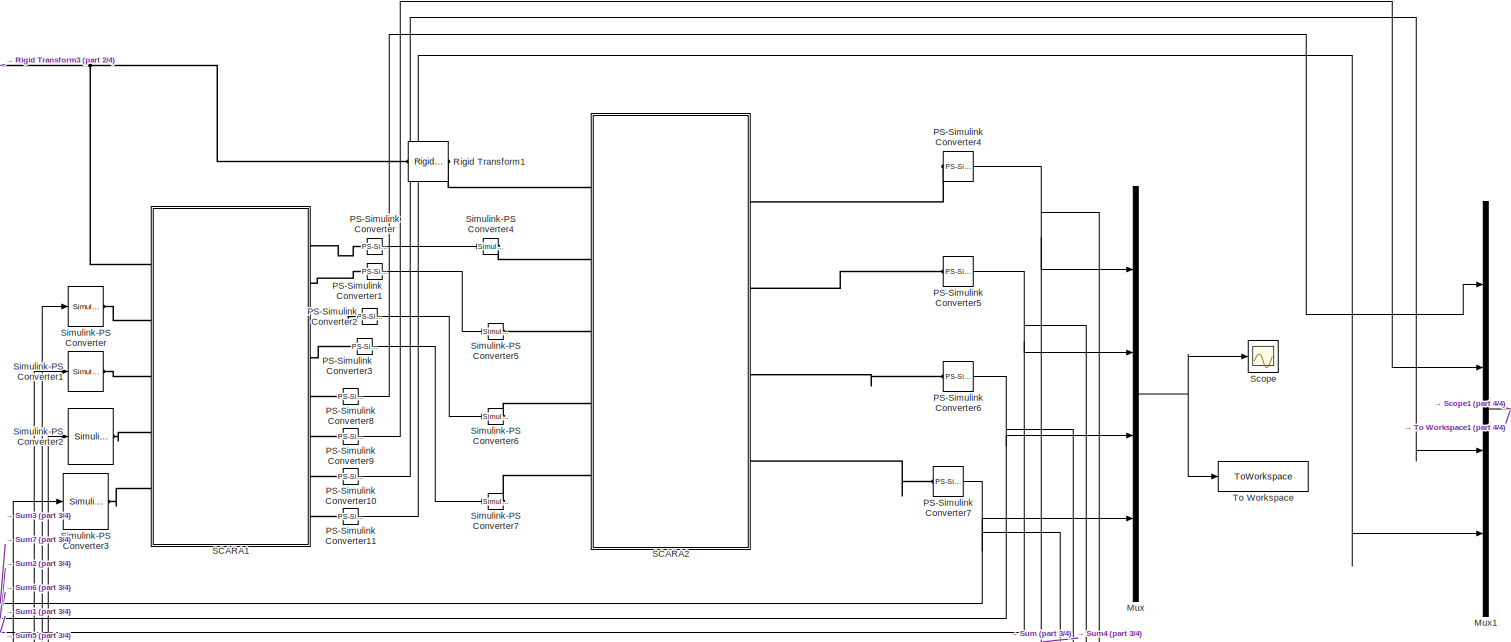
[diagram: root canvas - part 1/4, top center region]
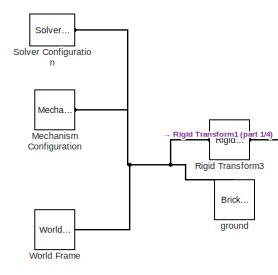
[diagram: root canvas - part 2/4, top left region]
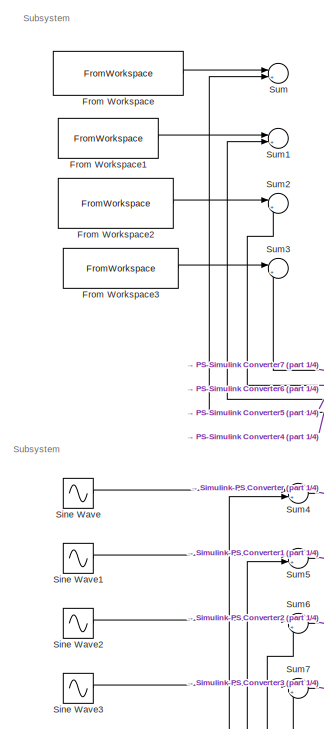
[diagram: root canvas - part 3/4, middle left region]
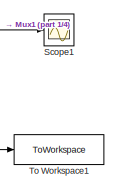
[diagram: root canvas - part 4/4, middle right region]
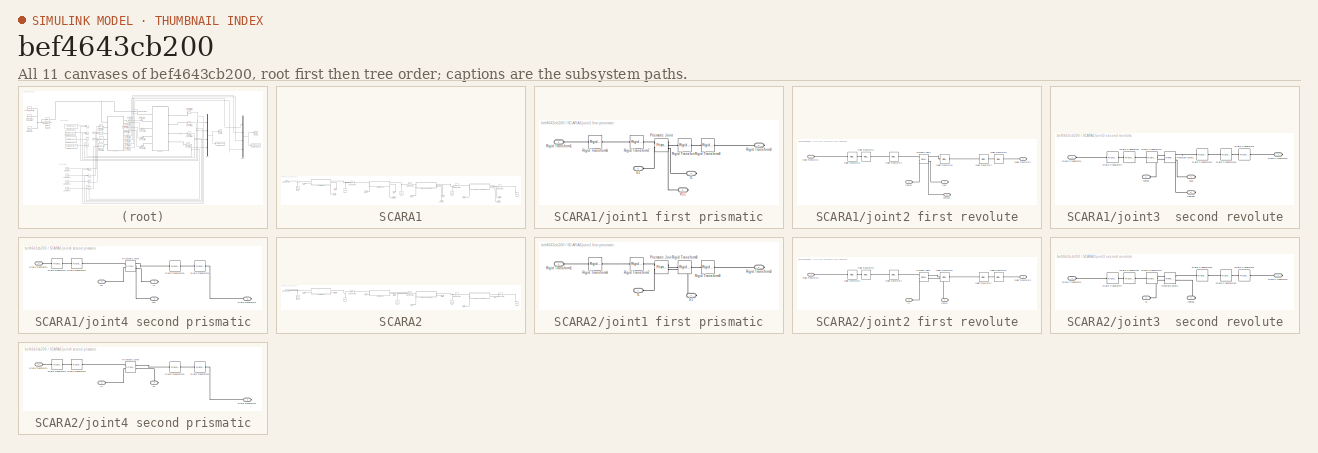
[diagram: thumbnail index - all 11 canvases of the model, root first then tree order]
MODEL slx_bef4643cb200
KIND model
CONFIG AbsTol = auto
CONFIG EnableMultiTasking = off
CONFIG FixedStep = 0.001
CONFIG MaxStep = auto
CONFIG MinStep = auto
CONFIG RelTol = 1e-3
CONFIG SampleTimeConstraint = Unconstrained
CONFIG SolverName = VariableStepAuto
CONFIG StartTime = 0.0
CONFIG StopTime = 50
BLOCK [FromWorkspace] From Workspace
  SampleTime = -1
  VariableName = b1_timeseries
BLOCK [FromWorkspace] From Workspace1
  SampleTime = -1
  VariableName = theta2_timeseries
BLOCK [FromWorkspace] From Workspace2
  SampleTime = -1
  VariableName = theta3_timeseries
BLOCK [FromWorkspace] From Workspace3
  SampleTime = -1
  VariableName = b4_timeseries
BLOCK [Reference] Mechanism Configuration  REF=sm_lib/Utilities/Mechanism
Configuration
  Ports = [0, 0, 0, 0, 0, 0, 1]
  SourceBlock = sm_lib/Utilities/Mechanism\nConfiguration
  SourceProductBaseCode = MS
  SourceType = Mechanism\nConfiguration
BLOCK [Mux] Mux
  DisplayOption = bar
  Ports = [4, 1]
BLOCK [Mux] Mux1
  DisplayOption = bar
  Ports = [4, 1]
BLOCK [Reference] PS-Simulink Converter  REF=nesl_utility/PS-Simulink
Converter
  Ports = [0, 1, 0, 0, 0, 1]
  SourceBlock = nesl_utility/PS-Simulink\nConverter
  SourceProductBaseCode = PW,SS
  SourceType = PS-Simulink\nConverter
BLOCK [Reference] PS-Simulink Converter1  REF=nesl_utility/PS-Simulink
Converter
  Ports = [0, 1, 0, 0, 0, 1]
  SourceBlock = nesl_utility/PS-Simulink\nConverter
  SourceProductBaseCode = PW,SS
  SourceType = PS-Simulink\nConverter
BLOCK [Reference] PS-Simulink Converter10  REF=nesl_utility/PS-Simulink
Converter
  Ports = [0, 1, 0, 0, 0, 1]
  SourceBlock = nesl_utility/PS-Simulink\nConverter
  SourceProductBaseCode = PW,SS
  SourceType = PS-Simulink\nConverter
BLOCK [Reference] PS-Simulink Converter11  REF=nesl_utility/PS-Simulink
Converter
  Ports = [0, 1, 0, 0, 0, 1]
  SourceBlock = nesl_utility/PS-Simulink\nConverter
  SourceProductBaseCode = PW,SS
  SourceType = PS-Simulink\nConverter
BLOCK [Reference] PS-Simulink Converter2  REF=nesl_utility/PS-Simulink
Converter
  Ports = [0, 1, 0, 0, 0, 1]
  SourceBlock = nesl_utility/PS-Simulink\nConverter
  SourceProductBaseCode = PW,SS
  SourceType = PS-Simulink\nConverter
BLOCK [Reference] PS-Simulink Converter3  REF=nesl_utility/PS-Simulink
Converter
  Ports = [0, 1, 0, 0, 0, 1]
  SourceBlock = nesl_utility/PS-Simulink\nConverter
  SourceProductBaseCode = PW,SS
  SourceType = PS-Simulink\nConverter
BLOCK [Reference] PS-Simulink Converter4  REF=nesl_utility/PS-Simulink
Converter
  Ports = [0, 1, 0, 0, 0, 1]
  SourceBlock = nesl_utility/PS-Simulink\nConverter
  SourceProductBaseCode = PW,SS
  SourceType = PS-Simulink\nConverter
BLOCK [Reference] PS-Simulink Converter5  REF=nesl_utility/PS-Simulink
Converter
  Ports = [0, 1, 0, 0, 0, 1]
  SourceBlock = nesl_utility/PS-Simulink\nConverter
  SourceProductBaseCode = PW,SS
  SourceType = PS-Simulink\nConverter
BLOCK [Reference] PS-Simulink Converter6  REF=nesl_utility/PS-Simulink
Converter
  Ports = [0, 1, 0, 0, 0, 1]
  SourceBlock = nesl_utility/PS-Simulink\nConverter
  SourceProductBaseCode = PW,SS
  SourceType = PS-Simulink\nConverter
BLOCK [Reference] PS-Simulink Converter7  REF=nesl_utility/PS-Simulink
Converter
  Ports = [0, 1, 0, 0, 0, 1]
  SourceBlock = nesl_utility/PS-Simulink\nConverter
  SourceProductBaseCode = PW,SS
  SourceType = PS-Simulink\nConverter
BLOCK [Reference] PS-Simulink Converter8  REF=nesl_utility/PS-Simulink
Converter
  Ports = [0, 1, 0, 0, 0, 1]
  SourceBlock = nesl_utility/PS-Simulink\nConverter
  SourceProductBaseCode = PW,SS
  SourceType = PS-Simulink\nConverter
BLOCK [Reference] PS-Simulink Converter9  REF=nesl_utility/PS-Simulink
Converter
  Ports = [0, 1, 0, 0, 0, 1]
  SourceBlock = nesl_utility/PS-Simulink\nConverter
  SourceProductBaseCode = PW,SS
  SourceType = PS-Simulink\nConverter
BLOCK [Reference] Rigid Transform1  REF=sm_lib/Frames and
Transforms/Rigid
Transform
  Ports = [0, 0, 0, 0, 0, 1, 1]
  SourceBlock = sm_lib/Frames and\nTransforms/Rigid\nTransform
  SourceProductBaseCode = MS
  SourceType = Rigid\nTransform
BLOCK [Reference] Rigid Transform3  REF=sm_lib/Frames and
Transforms/Rigid
Transform
  Ports = [0, 0, 0, 0, 0, 1, 1]
  SourceBlock = sm_lib/Frames and\nTransforms/Rigid\nTransform
  SourceProductBaseCode = MS
  SourceType = Rigid\nTransform
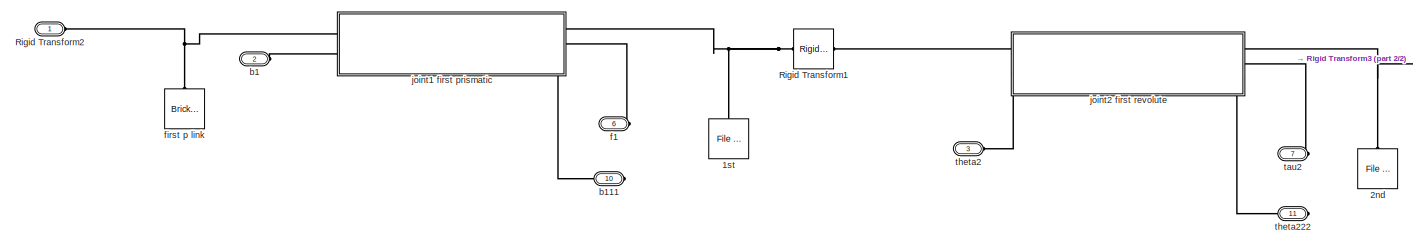
[diagram: SCARA1 - part 1/2, left side, full height]
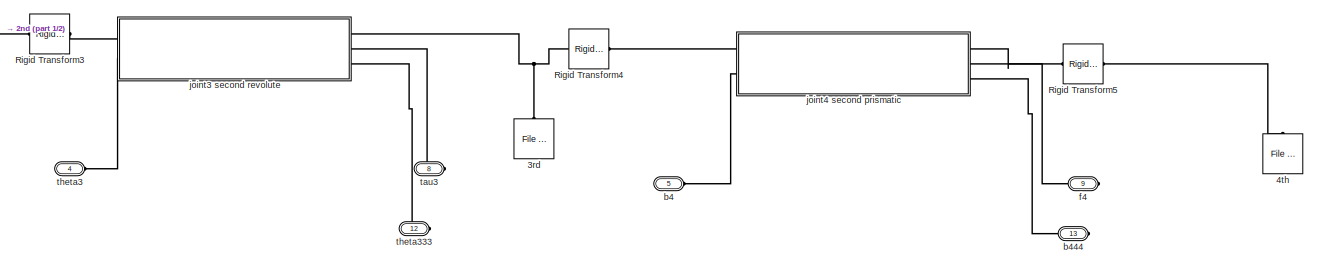
[diagram: SCARA1 - part 2/2, right side, full height]
BLOCK [SubSystem] SCARA1
  Ports = [0, 0, 0, 0, 0, 5, 8]
  RequestExecContextInheritance = off
BLOCK [Reference] SCARA1/1st  REF=sm_lib/Body Elements/File Solid
  NameLocation = right
  Ports = [0, 0, 0, 0, 0, 0, 1]
  SourceBlock = sm_lib/Body Elements/File Solid
  SourceProductBaseCode = MS
  SourceType = File Solid
BLOCK [Reference] SCARA1/2nd  REF=sm_lib/Body Elements/File Solid
  NameLocation = right
  Ports = [0, 0, 0, 0, 0, 0, 1]
  SourceBlock = sm_lib/Body Elements/File Solid
  SourceProductBaseCode = MS
  SourceType = File Solid
BLOCK [Reference] SCARA1/3rd  REF=sm_lib/Body Elements/File Solid
  NameLocation = right
  Ports = [0, 0, 0, 0, 0, 0, 1]
  SourceBlock = sm_lib/Body Elements/File Solid
  SourceProductBaseCode = MS
  SourceType = File Solid
BLOCK [Reference] SCARA1/4th  REF=sm_lib/Body Elements/File Solid
  NameLocation = right
  Ports = [0, 0, 0, 0, 0, 0, 1]
  SourceBlock = sm_lib/Body Elements/File Solid
  SourceProductBaseCode = MS
  SourceType = File Solid
BLOCK [Reference] SCARA1/Rigid Transform1  REF=sm_lib/Frames and
Transforms/Rigid
Transform
  Ports = [0, 0, 0, 0, 0, 1, 1]
  SourceBlock = sm_lib/Frames and\nTransforms/Rigid\nTransform
  SourceProductBaseCode = MS
  SourceType = Rigid\nTransform
BLOCK [PMIOPort] SCARA1/Rigid Transform2
  Side = Left
BLOCK [Reference] SCARA1/Rigid Transform3  REF=sm_lib/Frames and
Transforms/Rigid
Transform
  Ports = [0, 0, 0, 0, 0, 1, 1]
  SourceBlock = sm_lib/Frames and\nTransforms/Rigid\nTransform
  SourceProductBaseCode = MS
  SourceType = Rigid\nTransform
BLOCK [Reference] SCARA1/Rigid Transform4  REF=sm_lib/Frames and
Transforms/Rigid
Transform
  Ports = [0, 0, 0, 0, 0, 1, 1]
  SourceBlock = sm_lib/Frames and\nTransforms/Rigid\nTransform
  SourceProductBaseCode = MS
  SourceType = Rigid\nTransform
BLOCK [Reference] SCARA1/Rigid Transform5  REF=sm_lib/Frames and
Transforms/Rigid
Transform
  Ports = [0, 0, 0, 0, 0, 1, 1]
  SourceBlock = sm_lib/Frames and\nTransforms/Rigid\nTransform
  SourceProductBaseCode = MS
  SourceType = Rigid\nTransform
BLOCK [PMIOPort] SCARA1/b1
  Port = 2
  Side = Left
BLOCK [PMIOPort] SCARA1/b111
  NameLocation = top
  Port = 10
  Side = Right
BLOCK [PMIOPort] SCARA1/b4
  Port = 5
  Side = Left
BLOCK [PMIOPort] SCARA1/b444
  NameLocation = top
  Port = 13
  Side = Right
BLOCK [PMIOPort] SCARA1/f1
  NameLocation = top
  Port = 6
  Side = Right
BLOCK [PMIOPort] SCARA1/f4
  NameLocation = top
  Port = 9
  Side = Right
BLOCK [Reference] SCARA1/first p link  REF=sm_lib/Body Elements/Brick Solid
  NameLocation = right
  Ports = [0, 0, 0, 0, 0, 0, 1]
  SourceBlock = sm_lib/Body Elements/Brick Solid
  SourceProductBaseCode = MS
  SourceType = Brick Solid
BLOCK [SubSystem] SCARA1/joint1 first prismatic
  Ports = [0, 0, 0, 0, 0, 2, 3]
  RequestExecContextInheritance = off
BLOCK [Reference] SCARA1/joint1 first prismatic/Prismatic Joint  REF=sm_lib/Joints/Prismatic
Joint
  Ports = [0, 0, 0, 0, 0, 2, 3]
  SourceBlock = sm_lib/Joints/Prismatic\nJoint
  SourceProductBaseCode = MS
  SourceType = Prismatic\nJoint
BLOCK [PMIOPort] SCARA1/joint1 first prismatic/Rigid Transform1
  Side = Left
BLOCK [PMIOPort] SCARA1/joint1 first prismatic/Rigid Transform2
  Port = 2
  Side = Right
BLOCK [Reference] SCARA1/joint1 first prismatic/Rigid Transform6  REF=sm_lib/Frames and
Transforms/Rigid
Transform
  Ports = [0, 0, 0, 0, 0, 1, 1]
  SourceBlock = sm_lib/Frames and\nTransforms/Rigid\nTransform
  SourceProductBaseCode = MS
  SourceType = Rigid\nTransform
BLOCK [Reference] SCARA1/joint1 first prismatic/Rigid Transform7  REF=sm_lib/Frames and
Transforms/Rigid
Transform
  Ports = [0, 0, 0, 0, 0, 1, 1]
  SourceBlock = sm_lib/Frames and\nTransforms/Rigid\nTransform
  SourceProductBaseCode = MS
  SourceType = Rigid\nTransform
BLOCK [Reference] SCARA1/joint1 first prismatic/Rigid Transform8  REF=sm_lib/Frames and
Transforms/Rigid
Transform
  Ports = [0, 0, 0, 0, 0, 1, 1]
  SourceBlock = sm_lib/Frames and\nTransforms/Rigid\nTransform
  SourceProductBaseCode = MS
  SourceType = Rigid\nTransform
BLOCK [Reference] SCARA1/joint1 first prismatic/Rigid Transform9  REF=sm_lib/Frames and
Transforms/Rigid
Transform
  Ports = [0, 0, 0, 0, 0, 1, 1]
  SourceBlock = sm_lib/Frames and\nTransforms/Rigid\nTransform
  SourceProductBaseCode = MS
  SourceType = Rigid\nTransform
BLOCK [PMIOPort] SCARA1/joint1 first prismatic/b1
  Port = 3
  Side = Left
BLOCK [PMIOPort] SCARA1/joint1 first prismatic/b11
  NameLocation = top
  Port = 5
  Side = Right
BLOCK [PMIOPort] SCARA1/joint1 first prismatic/f1
  NameLocation = top
  Port = 4
  Side = Right
BLOCK [SubSystem] SCARA1/joint2 first revolute
  Ports = [0, 0, 0, 0, 0, 2, 3]
  RequestExecContextInheritance = off
BLOCK [Reference] SCARA1/joint2 first revolute/Revolute Joint1  REF=sm_lib/Joints/Revolute Joint
  Ports = [0, 0, 0, 0, 0, 2, 3]
  SourceBlock = sm_lib/Joints/Revolute Joint
  SourceProductBaseCode = MS
  SourceType = Revolute Joint
BLOCK [PMIOPort] SCARA1/joint2 first revolute/Rigid Transform1
  Side = Left
BLOCK [Reference] SCARA1/joint2 first revolute/Rigid Transform2  REF=sm_lib/Frames and
Transforms/Rigid
Transform
  Ports = [0, 0, 0, 0, 0, 1, 1]
  SourceBlock = sm_lib/Frames and\nTransforms/Rigid\nTransform
  SourceProductBaseCode = MS
  SourceType = Rigid\nTransform
BLOCK [PMIOPort] SCARA1/joint2 first revolute/Rigid Transform3
  Port = 2
  Side = Right
BLOCK [Reference] SCARA1/joint2 first revolute/Rigid Transform4  REF=sm_lib/Frames and
Transforms/Rigid
Transform
  Ports = [0, 0, 0, 0, 0, 1, 1]
  SourceBlock = sm_lib/Frames and\nTransforms/Rigid\nTransform
  SourceProductBaseCode = MS
  SourceType = Rigid\nTransform
BLOCK [Reference] SCARA1/joint2 first revolute/Rigid Transform5  REF=sm_lib/Frames and
Transforms/Rigid
Transform
  Ports = [0, 0, 0, 0, 0, 1, 1]
  SourceBlock = sm_lib/Frames and\nTransforms/Rigid\nTransform
  SourceProductBaseCode = MS
  SourceType = Rigid\nTransform
BLOCK [Reference] SCARA1/joint2 first revolute/Rigid Transform6  REF=sm_lib/Frames and
Transforms/Rigid
Transform
  Ports = [0, 0, 0, 0, 0, 1, 1]
  SourceBlock = sm_lib/Frames and\nTransforms/Rigid\nTransform
  SourceProductBaseCode = MS
  SourceType = Rigid\nTransform
BLOCK [Reference] SCARA1/joint2 first revolute/Rigid Transform7  REF=sm_lib/Frames and
Transforms/Rigid
Transform
  Ports = [0, 0, 0, 0, 0, 1, 1]
  SourceBlock = sm_lib/Frames and\nTransforms/Rigid\nTransform
  SourceProductBaseCode = MS
  SourceType = Rigid\nTransform
BLOCK [Reference] SCARA1/joint2 first revolute/Rigid Transform8  REF=sm_lib/Frames and
Transforms/Rigid
Transform
  Ports = [0, 0, 0, 0, 0, 1, 1]
  SourceBlock = sm_lib/Frames and\nTransforms/Rigid\nTransform
  SourceProductBaseCode = MS
  SourceType = Rigid\nTransform
BLOCK [PMIOPort] SCARA1/joint2 first revolute/tau2
  NameLocation = top
  Port = 4
  Side = Right
BLOCK [PMIOPort] SCARA1/joint2 first revolute/tehta22
  NameLocation = top
  Port = 5
  Side = Right
BLOCK [PMIOPort] SCARA1/joint2 first revolute/theta2
  Port = 3
  Side = Left
BLOCK [SubSystem] SCARA1/joint3  second revolute
  Ports = [0, 0, 0, 0, 0, 2, 3]
  RequestExecContextInheritance = off
BLOCK [Reference] SCARA1/joint3  second revolute/Revolute Joint3  REF=sm_lib/Joints/Revolute Joint
  Ports = [0, 0, 0, 0, 0, 2, 3]
  SourceBlock = sm_lib/Joints/Revolute Joint
  SourceProductBaseCode = MS
  SourceType = Revolute Joint
BLOCK [PMIOPort] SCARA1/joint3  second revolute/Rigid Transform1
  Side = Left
BLOCK [Reference] SCARA1/joint3  second revolute/Rigid Transform10  REF=sm_lib/Frames and
Transforms/Rigid
Transform
  Ports = [0, 0, 0, 0, 0, 1, 1]
  SourceBlock = sm_lib/Frames and\nTransforms/Rigid\nTransform
  SourceProductBaseCode = MS
  SourceType = Rigid\nTransform
BLOCK [Reference] SCARA1/joint3  second revolute/Rigid Transform11  REF=sm_lib/Frames and
Transforms/Rigid
Transform
  Ports = [0, 0, 0, 0, 0, 1, 1]
  SourceBlock = sm_lib/Frames and\nTransforms/Rigid\nTransform
  SourceProductBaseCode = MS
  SourceType = Rigid\nTransform
BLOCK [Reference] SCARA1/joint3  second revolute/Rigid Transform12  REF=sm_lib/Frames and
Transforms/Rigid
Transform
  Ports = [0, 0, 0, 0, 0, 1, 1]
  SourceBlock = sm_lib/Frames and\nTransforms/Rigid\nTransform
  SourceProductBaseCode = MS
  SourceType = Rigid\nTransform
BLOCK [PMIOPort] SCARA1/joint3  second revolute/Rigid Transform2
  Port = 2
  Side = Right
BLOCK [Reference] SCARA1/joint3  second revolute/Rigid Transform7  REF=sm_lib/Frames and
Transforms/Rigid
Transform
  Ports = [0, 0, 0, 0, 0, 1, 1]
  SourceBlock = sm_lib/Frames and\nTransforms/Rigid\nTransform
  SourceProductBaseCode = MS
  SourceType = Rigid\nTransform
BLOCK [Reference] SCARA1/joint3  second revolute/Rigid Transform8  REF=sm_lib/Frames and
Transforms/Rigid
Transform
  Ports = [0, 0, 0, 0, 0, 1, 1]
  SourceBlock = sm_lib/Frames and\nTransforms/Rigid\nTransform
  SourceProductBaseCode = MS
  SourceType = Rigid\nTransform
BLOCK [Reference] SCARA1/joint3  second revolute/Rigid Transform9  REF=sm_lib/Frames and
Transforms/Rigid
Transform
  Ports = [0, 0, 0, 0, 0, 1, 1]
  SourceBlock = sm_lib/Frames and\nTransforms/Rigid\nTransform
  SourceProductBaseCode = MS
  SourceType = Rigid\nTransform
BLOCK [PMIOPort] SCARA1/joint3  second revolute/tau3
  NameLocation = top
  Port = 4
  Side = Right
BLOCK [PMIOPort] SCARA1/joint3  second revolute/theta3
  Port = 3
  Side = Left
BLOCK [PMIOPort] SCARA1/joint3  second revolute/theta33
  NameLocation = top
  Port = 5
  Side = Right
BLOCK [SubSystem] SCARA1/joint4 second prismatic
  Ports = [0, 0, 0, 0, 0, 2, 3]
  RequestExecContextInheritance = off
BLOCK [Reference] SCARA1/joint4 second prismatic/Prismatic Joint  REF=sm_lib/Joints/Prismatic
Joint
  Ports = [0, 0, 0, 0, 0, 2, 3]
  SourceBlock = sm_lib/Joints/Prismatic\nJoint
  SourceProductBaseCode = MS
  SourceType = Prismatic\nJoint
BLOCK [PMIOPort] SCARA1/joint4 second prismatic/Rigid Transform1
  Side = Left
BLOCK [Reference] SCARA1/joint4 second prismatic/Rigid Transform10  REF=sm_lib/Frames and
Transforms/Rigid
Transform
  Ports = [0, 0, 0, 0, 0, 1, 1]
  SourceBlock = sm_lib/Frames and\nTransforms/Rigid\nTransform
  SourceProductBaseCode = MS
  SourceType = Rigid\nTransform
BLOCK [PMIOPort] SCARA1/joint4 second prismatic/Rigid Transform2
  Port = 3
  Side = Right
BLOCK [Reference] SCARA1/joint4 second prismatic/Rigid Transform7  REF=sm_lib/Frames and
Transforms/Rigid
Transform
  Ports = [0, 0, 0, 0, 0, 1, 1]
  SourceBlock = sm_lib/Frames and\nTransforms/Rigid\nTransform
  SourceProductBaseCode = MS
  SourceType = Rigid\nTransform
BLOCK [Reference] SCARA1/joint4 second prismatic/Rigid Transform8  REF=sm_lib/Frames and
Transforms/Rigid
Transform
  Ports = [0, 0, 0, 0, 0, 1, 1]
  SourceBlock = sm_lib/Frames and\nTransforms/Rigid\nTransform
  SourceProductBaseCode = MS
  SourceType = Rigid\nTransform
BLOCK [Reference] SCARA1/joint4 second prismatic/Rigid Transform9  REF=sm_lib/Frames and
Transforms/Rigid
Transform
  Ports = [0, 0, 0, 0, 0, 1, 1]
  SourceBlock = sm_lib/Frames and\nTransforms/Rigid\nTransform
  SourceProductBaseCode = MS
  SourceType = Rigid\nTransform
BLOCK [PMIOPort] SCARA1/joint4 second prismatic/b4
  Port = 2
  Side = Left
BLOCK [PMIOPort] SCARA1/joint4 second prismatic/b44
  NameLocation = top
  Port = 5
  Side = Right
BLOCK [PMIOPort] SCARA1/joint4 second prismatic/f4
  NameLocation = top
  Port = 4
  Side = Right
BLOCK [PMIOPort] SCARA1/tau2
  NameLocation = top
  Port = 7
  Side = Right
BLOCK [PMIOPort] SCARA1/tau3
  NameLocation = top
  Port = 8
  Side = Right
BLOCK [PMIOPort] SCARA1/theta2
  Port = 3
  Side = Left
BLOCK [PMIOPort] SCARA1/theta222
  NameLocation = top
  Port = 11
  Side = Right
BLOCK [PMIOPort] SCARA1/theta3
  Port = 4
  Side = Left
BLOCK [PMIOPort] SCARA1/theta333
  NameLocation = top
  Port = 12
  Side = Right
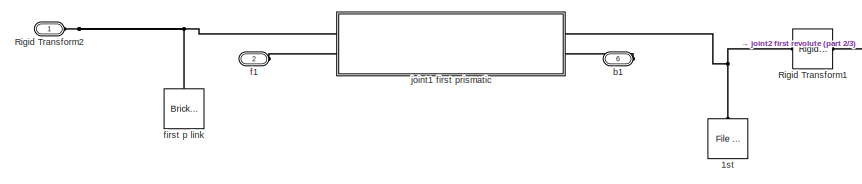
[diagram: SCARA2 - part 1/3, middle left region]
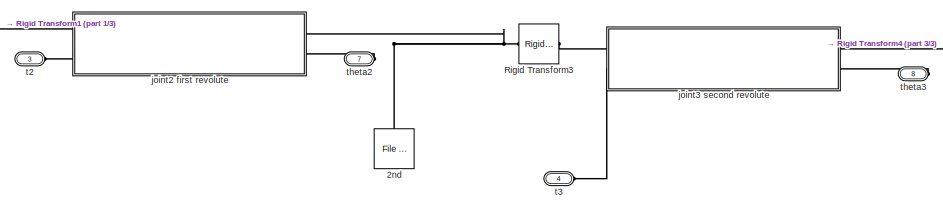
[diagram: SCARA2 - part 2/3, center side, full height]
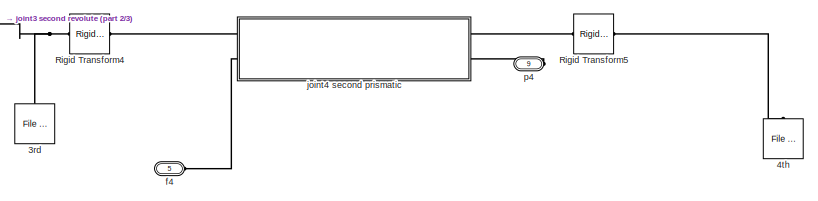
[diagram: SCARA2 - part 3/3, middle right region]
BLOCK [SubSystem] SCARA2
  Ports = [0, 0, 0, 0, 0, 5, 4]
  RequestExecContextInheritance = off
BLOCK [Reference] SCARA2/1st  REF=sm_lib/Body Elements/File Solid
  NameLocation = right
  Ports = [0, 0, 0, 0, 0, 0, 1]
  SourceBlock = sm_lib/Body Elements/File Solid
  SourceProductBaseCode = MS
  SourceType = File Solid
BLOCK [Reference] SCARA2/2nd  REF=sm_lib/Body Elements/File Solid
  NameLocation = right
  Ports = [0, 0, 0, 0, 0, 0, 1]
  SourceBlock = sm_lib/Body Elements/File Solid
  SourceProductBaseCode = MS
  SourceType = File Solid
BLOCK [Reference] SCARA2/3rd  REF=sm_lib/Body Elements/File Solid
  NameLocation = right
  Ports = [0, 0, 0, 0, 0, 0, 1]
  SourceBlock = sm_lib/Body Elements/File Solid
  SourceProductBaseCode = MS
  SourceType = File Solid
BLOCK [Reference] SCARA2/4th  REF=sm_lib/Body Elements/File Solid
  NameLocation = right
  Ports = [0, 0, 0, 0, 0, 0, 1]
  SourceBlock = sm_lib/Body Elements/File Solid
  SourceProductBaseCode = MS
  SourceType = File Solid
BLOCK [Reference] SCARA2/Rigid Transform1  REF=sm_lib/Frames and
Transforms/Rigid
Transform
  Ports = [0, 0, 0, 0, 0, 1, 1]
  SourceBlock = sm_lib/Frames and\nTransforms/Rigid\nTransform
  SourceProductBaseCode = MS
  SourceType = Rigid\nTransform
BLOCK [PMIOPort] SCARA2/Rigid Transform2
  Side = Left
BLOCK [Reference] SCARA2/Rigid Transform3  REF=sm_lib/Frames and
Transforms/Rigid
Transform
  Ports = [0, 0, 0, 0, 0, 1, 1]
  SourceBlock = sm_lib/Frames and\nTransforms/Rigid\nTransform
  SourceProductBaseCode = MS
  SourceType = Rigid\nTransform
BLOCK [Reference] SCARA2/Rigid Transform4  REF=sm_lib/Frames and
Transforms/Rigid
Transform
  Ports = [0, 0, 0, 0, 0, 1, 1]
  SourceBlock = sm_lib/Frames and\nTransforms/Rigid\nTransform
  SourceProductBaseCode = MS
  SourceType = Rigid\nTransform
BLOCK [Reference] SCARA2/Rigid Transform5  REF=sm_lib/Frames and
Transforms/Rigid
Transform
  Ports = [0, 0, 0, 0, 0, 1, 1]
  SourceBlock = sm_lib/Frames and\nTransforms/Rigid\nTransform
  SourceProductBaseCode = MS
  SourceType = Rigid\nTransform
BLOCK [PMIOPort] SCARA2/b1
  NameLocation = top
  Port = 6
  Side = Right
BLOCK [PMIOPort] SCARA2/f1
  Port = 2
  Side = Left
BLOCK [PMIOPort] SCARA2/f4
  Port = 5
  Side = Left
BLOCK [Reference] SCARA2/first p link  REF=sm_lib/Body Elements/Brick Solid
  NameLocation = right
  Ports = [0, 0, 0, 0, 0, 0, 1]
  SourceBlock = sm_lib/Body Elements/Brick Solid
  SourceProductBaseCode = MS
  SourceType = Brick Solid
BLOCK [SubSystem] SCARA2/joint1 first prismatic
  Ports = [0, 0, 0, 0, 0, 2, 2]
  RequestExecContextInheritance = off
BLOCK [Reference] SCARA2/joint1 first prismatic/Prismatic Joint  REF=sm_lib/Joints/Prismatic
Joint
  Ports = [0, 0, 0, 0, 0, 2, 2]
  SourceBlock = sm_lib/Joints/Prismatic\nJoint
  SourceProductBaseCode = MS
  SourceType = Prismatic\nJoint
BLOCK [PMIOPort] SCARA2/joint1 first prismatic/Rigid Transform1
  Side = Left
BLOCK [PMIOPort] SCARA2/joint1 first prismatic/Rigid Transform2
  Port = 2
  Side = Right
BLOCK [Reference] SCARA2/joint1 first prismatic/Rigid Transform6  REF=sm_lib/Frames and
Transforms/Rigid
Transform
  Ports = [0, 0, 0, 0, 0, 1, 1]
  SourceBlock = sm_lib/Frames and\nTransforms/Rigid\nTransform
  SourceProductBaseCode = MS
  SourceType = Rigid\nTransform
BLOCK [Reference] SCARA2/joint1 first prismatic/Rigid Transform7  REF=sm_lib/Frames and
Transforms/Rigid
Transform
  Ports = [0, 0, 0, 0, 0, 1, 1]
  SourceBlock = sm_lib/Frames and\nTransforms/Rigid\nTransform
  SourceProductBaseCode = MS
  SourceType = Rigid\nTransform
BLOCK [Reference] SCARA2/joint1 first prismatic/Rigid Transform8  REF=sm_lib/Frames and
Transforms/Rigid
Transform
  Ports = [0, 0, 0, 0, 0, 1, 1]
  SourceBlock = sm_lib/Frames and\nTransforms/Rigid\nTransform
  SourceProductBaseCode = MS
  SourceType = Rigid\nTransform
BLOCK [Reference] SCARA2/joint1 first prismatic/Rigid Transform9  REF=sm_lib/Frames and
Transforms/Rigid
Transform
  Ports = [0, 0, 0, 0, 0, 1, 1]
  SourceBlock = sm_lib/Frames and\nTransforms/Rigid\nTransform
  SourceProductBaseCode = MS
  SourceType = Rigid\nTransform
BLOCK [PMIOPort] SCARA2/joint1 first prismatic/b1
  NameLocation = top
  Port = 4
  Side = Right
BLOCK [PMIOPort] SCARA2/joint1 first prismatic/f1
  Port = 3
  Side = Left
BLOCK [SubSystem] SCARA2/joint2 first revolute
  Ports = [0, 0, 0, 0, 0, 2, 2]
  RequestExecContextInheritance = off
BLOCK [Reference] SCARA2/joint2 first revolute/Revolute Joint1  REF=sm_lib/Joints/Revolute Joint
  Ports = [0, 0, 0, 0, 0, 2, 2]
  SourceBlock = sm_lib/Joints/Revolute Joint
  SourceProductBaseCode = MS
  SourceType = Revolute Joint
BLOCK [PMIOPort] SCARA2/joint2 first revolute/Rigid Transform1
  Side = Left
BLOCK [Reference] SCARA2/joint2 first revolute/Rigid Transform2  REF=sm_lib/Frames and
Transforms/Rigid
Transform
  Ports = [0, 0, 0, 0, 0, 1, 1]
  SourceBlock = sm_lib/Frames and\nTransforms/Rigid\nTransform
  SourceProductBaseCode = MS
  SourceType = Rigid\nTransform
BLOCK [PMIOPort] SCARA2/joint2 first revolute/Rigid Transform3
  Port = 2
  Side = Right
BLOCK [Reference] SCARA2/joint2 first revolute/Rigid Transform4  REF=sm_lib/Frames and
Transforms/Rigid
Transform
  Ports = [0, 0, 0, 0, 0, 1, 1]
  SourceBlock = sm_lib/Frames and\nTransforms/Rigid\nTransform
  SourceProductBaseCode = MS
  SourceType = Rigid\nTransform
BLOCK [Reference] SCARA2/joint2 first revolute/Rigid Transform5  REF=sm_lib/Frames and
Transforms/Rigid
Transform
  Ports = [0, 0, 0, 0, 0, 1, 1]
  SourceBlock = sm_lib/Frames and\nTransforms/Rigid\nTransform
  SourceProductBaseCode = MS
  SourceType = Rigid\nTransform
BLOCK [Reference] SCARA2/joint2 first revolute/Rigid Transform6  REF=sm_lib/Frames and
Transforms/Rigid
Transform
  Ports = [0, 0, 0, 0, 0, 1, 1]
  SourceBlock = sm_lib/Frames and\nTransforms/Rigid\nTransform
  SourceProductBaseCode = MS
  SourceType = Rigid\nTransform
BLOCK [Reference] SCARA2/joint2 first revolute/Rigid Transform7  REF=sm_lib/Frames and
Transforms/Rigid
Transform
  Ports = [0, 0, 0, 0, 0, 1, 1]
  SourceBlock = sm_lib/Frames and\nTransforms/Rigid\nTransform
  SourceProductBaseCode = MS
  SourceType = Rigid\nTransform
BLOCK [Reference] SCARA2/joint2 first revolute/Rigid Transform8  REF=sm_lib/Frames and
Transforms/Rigid
Transform
  Ports = [0, 0, 0, 0, 0, 1, 1]
  SourceBlock = sm_lib/Frames and\nTransforms/Rigid\nTransform
  SourceProductBaseCode = MS
  SourceType = Rigid\nTransform
BLOCK [PMIOPort] SCARA2/joint2 first revolute/t2
  Port = 3
  Side = Left
BLOCK [PMIOPort] SCARA2/joint2 first revolute/theta2
  NameLocation = top
  Port = 4
  Side = Right
BLOCK [SubSystem] SCARA2/joint3  second revolute
  Ports = [0, 0, 0, 0, 0, 2, 2]
  RequestExecContextInheritance = off
BLOCK [Reference] SCARA2/joint3  second revolute/Revolute Joint3  REF=sm_lib/Joints/Revolute Joint
  Ports = [0, 0, 0, 0, 0, 2, 2]
  SourceBlock = sm_lib/Joints/Revolute Joint
  SourceProductBaseCode = MS
  SourceType = Revolute Joint
BLOCK [PMIOPort] SCARA2/joint3  second revolute/Rigid Transform1
  Side = Left
BLOCK [Reference] SCARA2/joint3  second revolute/Rigid Transform10  REF=sm_lib/Frames and
Transforms/Rigid
Transform
  Ports = [0, 0, 0, 0, 0, 1, 1]
  SourceBlock = sm_lib/Frames and\nTransforms/Rigid\nTransform
  SourceProductBaseCode = MS
  SourceType = Rigid\nTransform
BLOCK [Reference] SCARA2/joint3  second revolute/Rigid Transform11  REF=sm_lib/Frames and
Transforms/Rigid
Transform
  Ports = [0, 0, 0, 0, 0, 1, 1]
  SourceBlock = sm_lib/Frames and\nTransforms/Rigid\nTransform
  SourceProductBaseCode = MS
  SourceType = Rigid\nTransform
BLOCK [Reference] SCARA2/joint3  second revolute/Rigid Transform12  REF=sm_lib/Frames and
Transforms/Rigid
Transform
  Ports = [0, 0, 0, 0, 0, 1, 1]
  SourceBlock = sm_lib/Frames and\nTransforms/Rigid\nTransform
  SourceProductBaseCode = MS
  SourceType = Rigid\nTransform
BLOCK [PMIOPort] SCARA2/joint3  second revolute/Rigid Transform2
  Port = 2
  Side = Right
BLOCK [Reference] SCARA2/joint3  second revolute/Rigid Transform7  REF=sm_lib/Frames and
Transforms/Rigid
Transform
  Ports = [0, 0, 0, 0, 0, 1, 1]
  SourceBlock = sm_lib/Frames and\nTransforms/Rigid\nTransform
  SourceProductBaseCode = MS
  SourceType = Rigid\nTransform
BLOCK [Reference] SCARA2/joint3  second revolute/Rigid Transform8  REF=sm_lib/Frames and
Transforms/Rigid
Transform
  Ports = [0, 0, 0, 0, 0, 1, 1]
  SourceBlock = sm_lib/Frames and\nTransforms/Rigid\nTransform
  SourceProductBaseCode = MS
  SourceType = Rigid\nTransform
BLOCK [Reference] SCARA2/joint3  second revolute/Rigid Transform9  REF=sm_lib/Frames and
Transforms/Rigid
Transform
  Ports = [0, 0, 0, 0, 0, 1, 1]
  SourceBlock = sm_lib/Frames and\nTransforms/Rigid\nTransform
  SourceProductBaseCode = MS
  SourceType = Rigid\nTransform
BLOCK [PMIOPort] SCARA2/joint3  second revolute/t3
  Port = 3
  Side = Left
BLOCK [PMIOPort] SCARA2/joint3  second revolute/theta3
  NameLocation = top
  Port = 4
  Side = Right
BLOCK [SubSystem] SCARA2/joint4 second prismatic
  Ports = [0, 0, 0, 0, 0, 2, 2]
  RequestExecContextInheritance = off
BLOCK [Reference] SCARA2/joint4 second prismatic/Prismatic Joint  REF=sm_lib/Joints/Prismatic
Joint
  Ports = [0, 0, 0, 0, 0, 2, 2]
  SourceBlock = sm_lib/Joints/Prismatic\nJoint
  SourceProductBaseCode = MS
  SourceType = Prismatic\nJoint
BLOCK [PMIOPort] SCARA2/joint4 second prismatic/Rigid Transform1
  Side = Left
BLOCK [Reference] SCARA2/joint4 second prismatic/Rigid Transform10  REF=sm_lib/Frames and
Transforms/Rigid
Transform
  Ports = [0, 0, 0, 0, 0, 1, 1]
  SourceBlock = sm_lib/Frames and\nTransforms/Rigid\nTransform
  SourceProductBaseCode = MS
  SourceType = Rigid\nTransform
BLOCK [PMIOPort] SCARA2/joint4 second prismatic/Rigid Transform2
  Port = 3
  Side = Right
BLOCK [Reference] SCARA2/joint4 second prismatic/Rigid Transform7  REF=sm_lib/Frames and
Transforms/Rigid
Transform
  Ports = [0, 0, 0, 0, 0, 1, 1]
  SourceBlock = sm_lib/Frames and\nTransforms/Rigid\nTransform
  SourceProductBaseCode = MS
  SourceType = Rigid\nTransform
BLOCK [Reference] SCARA2/joint4 second prismatic/Rigid Transform8  REF=sm_lib/Frames and
Transforms/Rigid
Transform
  Ports = [0, 0, 0, 0, 0, 1, 1]
  SourceBlock = sm_lib/Frames and\nTransforms/Rigid\nTransform
  SourceProductBaseCode = MS
  SourceType = Rigid\nTransform
BLOCK [Reference] SCARA2/joint4 second prismatic/Rigid Transform9  REF=sm_lib/Frames and
Transforms/Rigid
Transform
  Ports = [0, 0, 0, 0, 0, 1, 1]
  SourceBlock = sm_lib/Frames and\nTransforms/Rigid\nTransform
  SourceProductBaseCode = MS
  SourceType = Rigid\nTransform
BLOCK [PMIOPort] SCARA2/joint4 second prismatic/b4
  NameLocation = top
  Port = 4
  Side = Right
BLOCK [PMIOPort] SCARA2/joint4 second prismatic/f4
  Port = 2
  Side = Left
BLOCK [PMIOPort] SCARA2/p4
  NameLocation = top
  Port = 9
  Side = Right
BLOCK [PMIOPort] SCARA2/t2
  Port = 3
  Side = Left
BLOCK [PMIOPort] SCARA2/t3
  Port = 4
  Side = Left
BLOCK [PMIOPort] SCARA2/theta2
  NameLocation = top
  Port = 7
  Side = Right
BLOCK [PMIOPort] SCARA2/theta3
  NameLocation = top
  Port = 8
  Side = Right
BLOCK [Scope] Scope
  Floating = off
  NumInputPorts = 1
  Ports = [1]
  ScopeSpecificationString = Simulink.scopes.TimeScopeBlockCfg('CurrentConfiguration', extmgr.ConfigurationSet(extmgr.Configuration('Core','General UI',true),extmgr.Configuration('Core','Source UI',true),extmgr.Configuration('Sources','WiredSimulink',true),extmgr.Configuration('Visuals','Time Domain',true,'SerializedDisplays',{struct('MinYLimReal','-0.05479','MaxYLimReal','0.49309','YLabelReal','','MinYLimMag','0.00000','MaxY...<+1464ch>
BLOCK [Scope] Scope1
  Floating = off
  NumInputPorts = 1
  Ports = [1]
  ScopeSpecificationString = Simulink.scopes.TimeScopeBlockCfg('CurrentConfiguration', extmgr.ConfigurationSet(extmgr.Configuration('Core','General UI',true),extmgr.Configuration('Core','Source UI',true),extmgr.Configuration('Sources','WiredSimulink',true,'DataLoggingVariableName','ScopeData1'),extmgr.Configuration('Visuals','Time Domain',true,'SerializedDisplays',{struct('MinYLimReal','-0.05479','MaxYLimReal','0.49309','YLab...<+1503ch>
BLOCK [Reference] Simulink-PS Converter  REF=nesl_utility/Simulink-PS
Converter
  Ports = [1, 0, 0, 0, 0, 0, 1]
  SourceBlock = nesl_utility/Simulink-PS\nConverter
  SourceProductBaseCode = PW,SS
  SourceType = Simulink-PS\nConverter
BLOCK [Reference] Simulink-PS Converter1  REF=nesl_utility/Simulink-PS
Converter
  Ports = [1, 0, 0, 0, 0, 0, 1]
  SourceBlock = nesl_utility/Simulink-PS\nConverter
  SourceProductBaseCode = PW,SS
  SourceType = Simulink-PS\nConverter
BLOCK [Reference] Simulink-PS Converter2  REF=nesl_utility/Simulink-PS
Converter
  Ports = [1, 0, 0, 0, 0, 0, 1]
  SourceBlock = nesl_utility/Simulink-PS\nConverter
  SourceProductBaseCode = PW,SS
  SourceType = Simulink-PS\nConverter
BLOCK [Reference] Simulink-PS Converter3  REF=nesl_utility/Simulink-PS
Converter
  Ports = [1, 0, 0, 0, 0, 0, 1]
  SourceBlock = nesl_utility/Simulink-PS\nConverter
  SourceProductBaseCode = PW,SS
  SourceType = Simulink-PS\nConverter
BLOCK [Reference] Simulink-PS Converter4  REF=nesl_utility/Simulink-PS
Converter
  Ports = [1, 0, 0, 0, 0, 0, 1]
  SourceBlock = nesl_utility/Simulink-PS\nConverter
  SourceProductBaseCode = PW,SS
  SourceType = Simulink-PS\nConverter
BLOCK [Reference] Simulink-PS Converter5  REF=nesl_utility/Simulink-PS
Converter
  Ports = [1, 0, 0, 0, 0, 0, 1]
  SourceBlock = nesl_utility/Simulink-PS\nConverter
  SourceProductBaseCode = PW,SS
  SourceType = Simulink-PS\nConverter
BLOCK [Reference] Simulink-PS Converter6  REF=nesl_utility/Simulink-PS
Converter
  Ports = [1, 0, 0, 0, 0, 0, 1]
  SourceBlock = nesl_utility/Simulink-PS\nConverter
  SourceProductBaseCode = PW,SS
  SourceType = Simulink-PS\nConverter
BLOCK [Reference] Simulink-PS Converter7  REF=nesl_utility/Simulink-PS
Converter
  Ports = [1, 0, 0, 0, 0, 0, 1]
  SourceBlock = nesl_utility/Simulink-PS\nConverter
  SourceProductBaseCode = PW,SS
  SourceType = Simulink-PS\nConverter
BLOCK [Sin] Sine Wave
  Ports = [0, 1]
  SampleTime = 0
BLOCK [Sin] Sine Wave1
  Amplitude = 2.5
  Ports = [0, 1]
  SampleTime = 0
BLOCK [Sin] Sine Wave2
  Amplitude = -2
  Ports = [0, 1]
  SampleTime = 0
BLOCK [Sin] Sine Wave3
  Amplitude = 0.15
  Ports = [0, 1]
  SampleTime = 0
BLOCK [Reference] Solver Configuration  REF=nesl_utility/Solver
Configuration
  Ports = [0, 0, 0, 0, 0, 0, 1]
  SourceBlock = nesl_utility/Solver\nConfiguration
  SourceProductBaseCode = PW,SS
  SourceType = Solver\nConfiguration
BLOCK [Sum] Sum
  Inputs = |+-
  Ports = [2, 1]
BLOCK [Sum] Sum1
  Inputs = |+-
  Ports = [2, 1]
BLOCK [Sum] Sum2
  Inputs = |+-
  Ports = [2, 1]
BLOCK [Sum] Sum3
  Inputs = |+-
  Ports = [2, 1]
BLOCK [Sum] Sum4
  Inputs = |+-
  Ports = [2, 1]
BLOCK [Sum] Sum5
  Inputs = |+-
  Ports = [2, 1]
BLOCK [Sum] Sum6
  Inputs = |+-
  Ports = [2, 1]
BLOCK [Sum] Sum7
  Inputs = |+-
  Ports = [2, 1]
BLOCK [ToWorkspace] To Workspace
  FixptAsFi = on
  MaxDataPoints = inf
  Ports = [1]
  SampleTime = -1
  SaveFormat = Timeseries
  VariableName = thetaandb2
BLOCK [ToWorkspace] To Workspace1
  FixptAsFi = on
  MaxDataPoints = inf
  Ports = [1]
  SampleTime = -1
  SaveFormat = Timeseries
  VariableName = thetaandb1
BLOCK [Reference] World Frame  REF=sm_lib/Frames and
Transforms/World Frame
  Ports = [0, 0, 0, 0, 0, 0, 1]
  SourceBlock = sm_lib/Frames and\nTransforms/World Frame
  SourceProductBaseCode = MS
  SourceType = World Frame
BLOCK [Reference] ground  REF=sm_lib/Body Elements/Brick Solid
  NameLocation = right
  Ports = [0, 0, 0, 0, 0, 0, 1]
  SourceBlock = sm_lib/Body Elements/Brick Solid
  SourceProductBaseCode = MS
  SourceType = Brick Solid
ANNOTATION (root): Subsystem
LINE From Workspace1:1 -> Sum1:1
LINE From Workspace2:1 -> Sum2:1
LINE From Workspace3:1 -> Sum3:1
LINE From Workspace:1 -> Sum:1
NET Mux1:1 -> Scope1:1, To Workspace1:1
NET Mux:1 -> Scope:1, To Workspace:1
LINE PS-Simulink Converter10:1 -> Mux1:3
LINE PS-Simulink Converter11:1 -> Mux1:4
LINE PS-Simulink Converter1:1 -> Simulink-PS Converter5:1
LINE PS-Simulink Converter2:1 -> Simulink-PS Converter6:1
LINE PS-Simulink Converter3:1 -> Simulink-PS Converter7:1
NET PS-Simulink Converter4:1 -> Mux:1, Sum4:2, Sum:2
NET PS-Simulink Converter5:1 -> Mux:2, Sum1:2, Sum5:2
NET PS-Simulink Converter6:1 -> Mux:3, Sum2:2, Sum6:2
NET PS-Simulink Converter7:1 -> Mux:4, Sum3:2, Sum7:2
LINE PS-Simulink Converter8:1 -> Mux1:1
LINE PS-Simulink Converter9:1 -> Mux1:2
LINE PS-Simulink Converter:1 -> Simulink-PS Converter4:1
LINE Sine Wave1:1 -> Sum5:1
LINE Sine Wave2:1 -> Sum6:1
LINE Sine Wave3:1 -> Sum7:1
LINE Sine Wave:1 -> Sum4:1
LINE Sum4:1 -> Simulink-PS Converter:1
LINE Sum5:1 -> Simulink-PS Converter1:1
LINE Sum6:1 -> Simulink-PS Converter2:1
LINE Sum7:1 -> Simulink-PS Converter3:1
PNET net1: Mechanism Configuration:RConn1 -- Rigid Transform3:LConn1 -- Solver Configuration:RConn1 -- World Frame:RConn1 -- ground:RConn1
PLINE PS-Simulink Converter10:LConn1 -- SCARA1:RConn7
PLINE PS-Simulink Converter11:LConn1 -- SCARA1:RConn8
PLINE PS-Simulink Converter1:LConn1 -- SCARA1:RConn2
PLINE PS-Simulink Converter2:LConn1 -- SCARA1:RConn3
PLINE PS-Simulink Converter3:LConn1 -- SCARA1:RConn4
PLINE PS-Simulink Converter4:LConn1 -- SCARA2:RConn1
PLINE PS-Simulink Converter5:LConn1 -- SCARA2:RConn2
PLINE PS-Simulink Converter6:LConn1 -- SCARA2:RConn3
PLINE PS-Simulink Converter7:LConn1 -- SCARA2:RConn4
PLINE PS-Simulink Converter8:LConn1 -- SCARA1:RConn5
PLINE PS-Simulink Converter9:LConn1 -- SCARA1:RConn6
PLINE PS-Simulink Converter:LConn1 -- SCARA1:RConn1
PNET net2: Rigid Transform1:LConn1 -- Rigid Transform3:RConn1 -- SCARA1:LConn1
PLINE Rigid Transform1:RConn1 -- SCARA2:LConn1
PNET net3: SCARA1/1st:RConn1 -- SCARA1/Rigid Transform1:LConn1 -- SCARA1/joint1 first prismatic:RConn1
PNET net4: SCARA1/2nd:RConn1 -- SCARA1/Rigid Transform3:LConn1 -- SCARA1/joint2 first revolute:RConn1
PNET net5: SCARA1/3rd:RConn1 -- SCARA1/Rigid Transform4:LConn1 -- SCARA1/joint3  second revolute:RConn1
PLINE SCARA1/4th:RConn1 -- SCARA1/Rigid Transform5:RConn1
PLINE SCARA1/Rigid Transform1:RConn1 -- SCARA1/joint2 first revolute:LConn1
PNET net6: SCARA1/Rigid Transform2:RConn1 -- SCARA1/first p link:RConn1 -- SCARA1/joint1 first prismatic:LConn1
PLINE SCARA1/Rigid Transform3:RConn1 -- SCARA1/joint3  second revolute:LConn1
PLINE SCARA1/Rigid Transform4:RConn1 -- SCARA1/joint4 second prismatic:LConn1
PLINE SCARA1/Rigid Transform5:LConn1 -- SCARA1/joint4 second prismatic:RConn1
PLINE SCARA1/b111:RConn1 -- SCARA1/joint1 first prismatic:RConn3
PLINE SCARA1/b1:RConn1 -- SCARA1/joint1 first prismatic:LConn2
PLINE SCARA1/b444:RConn1 -- SCARA1/joint4 second prismatic:RConn3
PLINE SCARA1/b4:RConn1 -- SCARA1/joint4 second prismatic:LConn2
PLINE SCARA1/f1:RConn1 -- SCARA1/joint1 first prismatic:RConn2
PLINE SCARA1/f4:RConn1 -- SCARA1/joint4 second prismatic:RConn2
PLINE SCARA1/joint1 first prismatic/Prismatic Joint:LConn1 -- SCARA1/joint1 first prismatic/Rigid Transform7:RConn1
PLINE SCARA1/joint1 first prismatic/Prismatic Joint:LConn2 -- SCARA1/joint1 first prismatic/b1:RConn1
PLINE SCARA1/joint1 first prismatic/Prismatic Joint:RConn1 -- SCARA1/joint1 first prismatic/Rigid Transform8:LConn1
PLINE SCARA1/joint1 first prismatic/Prismatic Joint:RConn2 -- SCARA1/joint1 first prismatic/b11:RConn1
PLINE SCARA1/joint1 first prismatic/Prismatic Joint:RConn3 -- SCARA1/joint1 first prismatic/f1:RConn1
PLINE SCARA1/joint1 first prismatic/Rigid Transform1:RConn1 -- SCARA1/joint1 first prismatic/Rigid Transform6:LConn1
PLINE SCARA1/joint1 first prismatic/Rigid Transform2:RConn1 -- SCARA1/joint1 first prismatic/Rigid Transform9:RConn1
PLINE SCARA1/joint1 first prismatic/Rigid Transform6:RConn1 -- SCARA1/joint1 first prismatic/Rigid Transform7:LConn1
PLINE SCARA1/joint1 first prismatic/Rigid Transform8:RConn1 -- SCARA1/joint1 first prismatic/Rigid Transform9:LConn1
PLINE SCARA1/joint2 first revolute/Revolute Joint1:LConn1 -- SCARA1/joint2 first revolute/Rigid Transform4:RConn1
PLINE SCARA1/joint2 first revolute/Revolute Joint1:LConn2 -- SCARA1/joint2 first revolute/theta2:RConn1
PLINE SCARA1/joint2 first revolute/Revolute Joint1:RConn1 -- SCARA1/joint2 first revolute/Rigid Transform8:LConn1
PLINE SCARA1/joint2 first revolute/Revolute Joint1:RConn2 -- SCARA1/joint2 first revolute/tehta22:RConn1
PLINE SCARA1/joint2 first revolute/Revolute Joint1:RConn3 -- SCARA1/joint2 first revolute/tau2:RConn1
PLINE SCARA1/joint2 first revolute/Rigid Transform1:RConn1 -- SCARA1/joint2 first revolute/Rigid Transform2:LConn1
PLINE SCARA1/joint2 first revolute/Rigid Transform2:RConn1 -- SCARA1/joint2 first revolute/Rigid Transform6:LConn1
PLINE SCARA1/joint2 first revolute/Rigid Transform3:RConn1 -- SCARA1/joint2 first revolute/Rigid Transform5:RConn1
PLINE SCARA1/joint2 first revolute/Rigid Transform4:LConn1 -- SCARA1/joint2 first revolute/Rigid Transform6:RConn1
PLINE SCARA1/joint2 first revolute/Rigid Transform5:LConn1 -- SCARA1/joint2 first revolute/Rigid Transform7:RConn1
PLINE SCARA1/joint2 first revolute/Rigid Transform7:LConn1 -- SCARA1/joint2 first revolute/Rigid Transform8:RConn1
PLINE SCARA1/joint2 first revolute:LConn2 -- SCARA1/theta2:RConn1
PLINE SCARA1/joint2 first revolute:RConn2 -- SCARA1/tau2:RConn1
PLINE SCARA1/joint2 first revolute:RConn3 -- SCARA1/theta222:RConn1
PLINE SCARA1/joint3  second revolute/Revolute Joint3:LConn1 -- SCARA1/joint3  second revolute/Rigid Transform11:RConn1
PLINE SCARA1/joint3  second revolute/Revolute Joint3:LConn2 -- SCARA1/joint3  second revolute/theta3:RConn1
PLINE SCARA1/joint3  second revolute/Revolute Joint3:RConn1 -- SCARA1/joint3  second revolute/Rigid Transform12:LConn1
PLINE SCARA1/joint3  second revolute/Revolute Joint3:RConn2 -- SCARA1/joint3  second revolute/theta33:RConn1
PLINE SCARA1/joint3  second revolute/Revolute Joint3:RConn3 -- SCARA1/joint3  second revolute/tau3:RConn1
PLINE SCARA1/joint3  second revolute/Rigid Transform10:LConn1 -- SCARA1/joint3  second revolute/Rigid Transform12:RConn1
PLINE SCARA1/joint3  second revolute/Rigid Transform10:RConn1 -- SCARA1/joint3  second revolute/Rigid Transform8:LConn1
PLINE SCARA1/joint3  second revolute/Rigid Transform11:LConn1 -- SCARA1/joint3  second revolute/Rigid Transform9:RConn1
PLINE SCARA1/joint3  second revolute/Rigid Transform1:RConn1 -- SCARA1/joint3  second revolute/Rigid Transform7:LConn1
PLINE SCARA1/joint3  second revolute/Rigid Transform2:RConn1 -- SCARA1/joint3  second revolute/Rigid Transform8:RConn1
PLINE SCARA1/joint3  second revolute/Rigid Transform7:RConn1 -- SCARA1/joint3  second revolute/Rigid Transform9:LConn1
PLINE SCARA1/joint3  second revolute:LConn2 -- SCARA1/theta3:RConn1
PLINE SCARA1/joint3  second revolute:RConn2 -- SCARA1/tau3:RConn1
PLINE SCARA1/joint3  second revolute:RConn3 -- SCARA1/theta333:RConn1
PLINE SCARA1/joint4 second prismatic/Prismatic Joint:LConn1 -- SCARA1/joint4 second prismatic/Rigid Transform9:RConn1
PLINE SCARA1/joint4 second prismatic/Prismatic Joint:LConn2 -- SCARA1/joint4 second prismatic/b4:RConn1
PLINE SCARA1/joint4 second prismatic/Prismatic Joint:RConn1 -- SCARA1/joint4 second prismatic/Rigid Transform10:LConn1
PLINE SCARA1/joint4 second prismatic/Prismatic Joint:RConn2 -- SCARA1/joint4 second prismatic/b44:RConn1
PLINE SCARA1/joint4 second prismatic/Prismatic Joint:RConn3 -- SCARA1/joint4 second prismatic/f4:RConn1
PLINE SCARA1/joint4 second prismatic/Rigid Transform10:RConn1 -- SCARA1/joint4 second prismatic/Rigid Transform8:LConn1
PLINE SCARA1/joint4 second prismatic/Rigid Transform1:RConn1 -- SCARA1/joint4 second prismatic/Rigid Transform7:LConn1
PLINE SCARA1/joint4 second prismatic/Rigid Transform2:RConn1 -- SCARA1/joint4 second prismatic/Rigid Transform8:RConn1
PLINE SCARA1/joint4 second prismatic/Rigid Transform7:RConn1 -- SCARA1/joint4 second prismatic/Rigid Transform9:LConn1
PLINE SCARA1:LConn2 -- Simulink-PS Converter:RConn1
PLINE SCARA1:LConn3 -- Simulink-PS Converter1:RConn1
PLINE SCARA1:LConn4 -- Simulink-PS Converter2:RConn1
PLINE SCARA1:LConn5 -- Simulink-PS Converter3:RConn1
PNET net7: SCARA2/1st:RConn1 -- SCARA2/Rigid Transform1:LConn1 -- SCARA2/joint1 first prismatic:RConn1
PNET net8: SCARA2/2nd:RConn1 -- SCARA2/Rigid Transform3:LConn1 -- SCARA2/joint2 first revolute:RConn1
PNET net9: SCARA2/3rd:RConn1 -- SCARA2/Rigid Transform4:LConn1 -- SCARA2/joint3  second revolute:RConn1
PLINE SCARA2/4th:RConn1 -- SCARA2/Rigid Transform5:RConn1
PLINE SCARA2/Rigid Transform1:RConn1 -- SCARA2/joint2 first revolute:LConn1
PNET net10: SCARA2/Rigid Transform2:RConn1 -- SCARA2/first p link:RConn1 -- SCARA2/joint1 first prismatic:LConn1
PLINE SCARA2/Rigid Transform3:RConn1 -- SCARA2/joint3  second revolute:LConn1
PLINE SCARA2/Rigid Transform4:RConn1 -- SCARA2/joint4 second prismatic:LConn1
PLINE SCARA2/Rigid Transform5:LConn1 -- SCARA2/joint4 second prismatic:RConn1
PLINE SCARA2/b1:RConn1 -- SCARA2/joint1 first prismatic:RConn2
PLINE SCARA2/f1:RConn1 -- SCARA2/joint1 first prismatic:LConn2
PLINE SCARA2/f4:RConn1 -- SCARA2/joint4 second prismatic:LConn2
PLINE SCARA2/joint1 first prismatic/Prismatic Joint:LConn1 -- SCARA2/joint1 first prismatic/Rigid Transform7:RConn1
PLINE SCARA2/joint1 first prismatic/Prismatic Joint:LConn2 -- SCARA2/joint1 first prismatic/f1:RConn1
PLINE SCARA2/joint1 first prismatic/Prismatic Joint:RConn1 -- SCARA2/joint1 first prismatic/Rigid Transform8:LConn1
PLINE SCARA2/joint1 first prismatic/Prismatic Joint:RConn2 -- SCARA2/joint1 first prismatic/b1:RConn1
PLINE SCARA2/joint1 first prismatic/Rigid Transform1:RConn1 -- SCARA2/joint1 first prismatic/Rigid Transform6:LConn1
PLINE SCARA2/joint1 first prismatic/Rigid Transform2:RConn1 -- SCARA2/joint1 first prismatic/Rigid Transform9:RConn1
PLINE SCARA2/joint1 first prismatic/Rigid Transform6:RConn1 -- SCARA2/joint1 first prismatic/Rigid Transform7:LConn1
PLINE SCARA2/joint1 first prismatic/Rigid Transform8:RConn1 -- SCARA2/joint1 first prismatic/Rigid Transform9:LConn1
PLINE SCARA2/joint2 first revolute/Revolute Joint1:LConn1 -- SCARA2/joint2 first revolute/Rigid Transform4:RConn1
PLINE SCARA2/joint2 first revolute/Revolute Joint1:LConn2 -- SCARA2/joint2 first revolute/t2:RConn1
PLINE SCARA2/joint2 first revolute/Revolute Joint1:RConn1 -- SCARA2/joint2 first revolute/Rigid Transform8:LConn1
PLINE SCARA2/joint2 first revolute/Revolute Joint1:RConn2 -- SCARA2/joint2 first revolute/theta2:RConn1
PLINE SCARA2/joint2 first revolute/Rigid Transform1:RConn1 -- SCARA2/joint2 first revolute/Rigid Transform2:LConn1
PLINE SCARA2/joint2 first revolute/Rigid Transform2:RConn1 -- SCARA2/joint2 first revolute/Rigid Transform6:LConn1
PLINE SCARA2/joint2 first revolute/Rigid Transform3:RConn1 -- SCARA2/joint2 first revolute/Rigid Transform5:RConn1
PLINE SCARA2/joint2 first revolute/Rigid Transform4:LConn1 -- SCARA2/joint2 first revolute/Rigid Transform6:RConn1
PLINE SCARA2/joint2 first revolute/Rigid Transform5:LConn1 -- SCARA2/joint2 first revolute/Rigid Transform7:RConn1
PLINE SCARA2/joint2 first revolute/Rigid Transform7:LConn1 -- SCARA2/joint2 first revolute/Rigid Transform8:RConn1
PLINE SCARA2/joint2 first revolute:LConn2 -- SCARA2/t2:RConn1
PLINE SCARA2/joint2 first revolute:RConn2 -- SCARA2/theta2:RConn1
PLINE SCARA2/joint3  second revolute/Revolute Joint3:LConn1 -- SCARA2/joint3  second revolute/Rigid Transform11:RConn1
PLINE SCARA2/joint3  second revolute/Revolute Joint3:LConn2 -- SCARA2/joint3  second revolute/t3:RConn1
PLINE SCARA2/joint3  second revolute/Revolute Joint3:RConn1 -- SCARA2/joint3  second revolute/Rigid Transform12:LConn1
PLINE SCARA2/joint3  second revolute/Revolute Joint3:RConn2 -- SCARA2/joint3  second revolute/theta3:RConn1
PLINE SCARA2/joint3  second revolute/Rigid Transform10:LConn1 -- SCARA2/joint3  second revolute/Rigid Transform12:RConn1
PLINE SCARA2/joint3  second revolute/Rigid Transform10:RConn1 -- SCARA2/joint3  second revolute/Rigid Transform8:LConn1
PLINE SCARA2/joint3  second revolute/Rigid Transform11:LConn1 -- SCARA2/joint3  second revolute/Rigid Transform9:RConn1
PLINE SCARA2/joint3  second revolute/Rigid Transform1:RConn1 -- SCARA2/joint3  second revolute/Rigid Transform7:LConn1
PLINE SCARA2/joint3  second revolute/Rigid Transform2:RConn1 -- SCARA2/joint3  second revolute/Rigid Transform8:RConn1
PLINE SCARA2/joint3  second revolute/Rigid Transform7:RConn1 -- SCARA2/joint3  second revolute/Rigid Transform9:LConn1
PLINE SCARA2/joint3  second revolute:LConn2 -- SCARA2/t3:RConn1
PLINE SCARA2/joint3  second revolute:RConn2 -- SCARA2/theta3:RConn1
PLINE SCARA2/joint4 second prismatic/Prismatic Joint:LConn1 -- SCARA2/joint4 second prismatic/Rigid Transform9:RConn1
PLINE SCARA2/joint4 second prismatic/Prismatic Joint:LConn2 -- SCARA2/joint4 second prismatic/f4:RConn1
PLINE SCARA2/joint4 second prismatic/Prismatic Joint:RConn1 -- SCARA2/joint4 second prismatic/Rigid Transform10:LConn1
PLINE SCARA2/joint4 second prismatic/Prismatic Joint:RConn2 -- SCARA2/joint4 second prismatic/b4:RConn1
PLINE SCARA2/joint4 second prismatic/Rigid Transform10:RConn1 -- SCARA2/joint4 second prismatic/Rigid Transform8:LConn1
PLINE SCARA2/joint4 second prismatic/Rigid Transform1:RConn1 -- SCARA2/joint4 second prismatic/Rigid Transform7:LConn1
PLINE SCARA2/joint4 second prismatic/Rigid Transform2:RConn1 -- SCARA2/joint4 second prismatic/Rigid Transform8:RConn1
PLINE SCARA2/joint4 second prismatic/Rigid Transform7:RConn1 -- SCARA2/joint4 second prismatic/Rigid Transform9:LConn1
PLINE SCARA2/joint4 second prismatic:RConn2 -- SCARA2/p4:RConn1
PLINE SCARA2:LConn2 -- Simulink-PS Converter4:RConn1
PLINE SCARA2:LConn3 -- Simulink-PS Converter5:RConn1
PLINE SCARA2:LConn4 -- Simulink-PS Converter6:RConn1
PLINE SCARA2:LConn5 -- Simulink-PS Converter7:RConn1
note: NET lines group one-source signal fan-out (src -> all destinations, sorted); 1:1 wires keep LINE; PNET lines group multi-terminal physical nets as a canonical sorted terminal list (undirected conserving connections); 2-terminal nets keep the pairwise PLINE form
